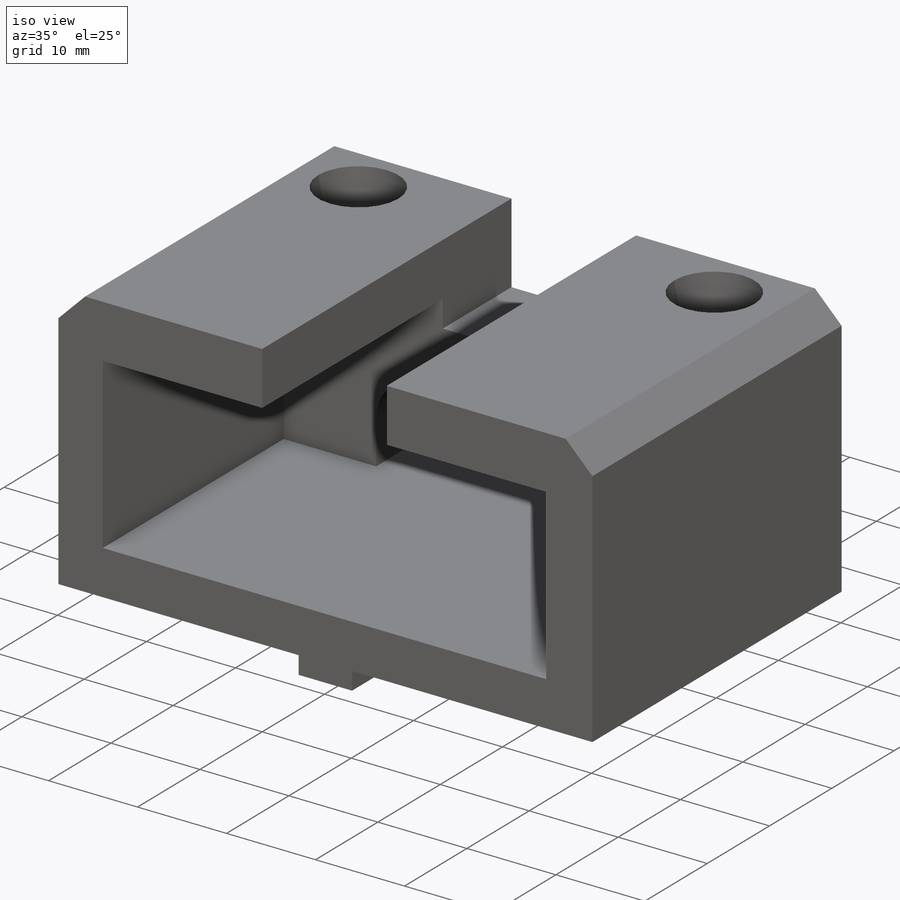
[diagram: iso view]
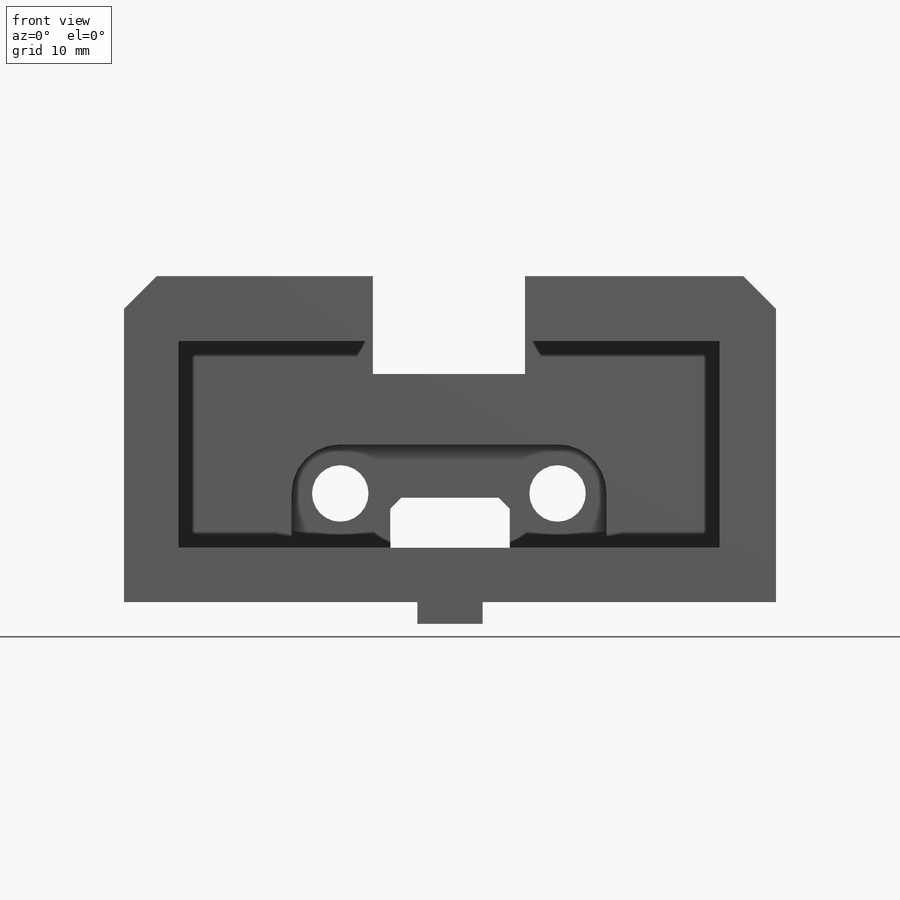
[diagram: front view]
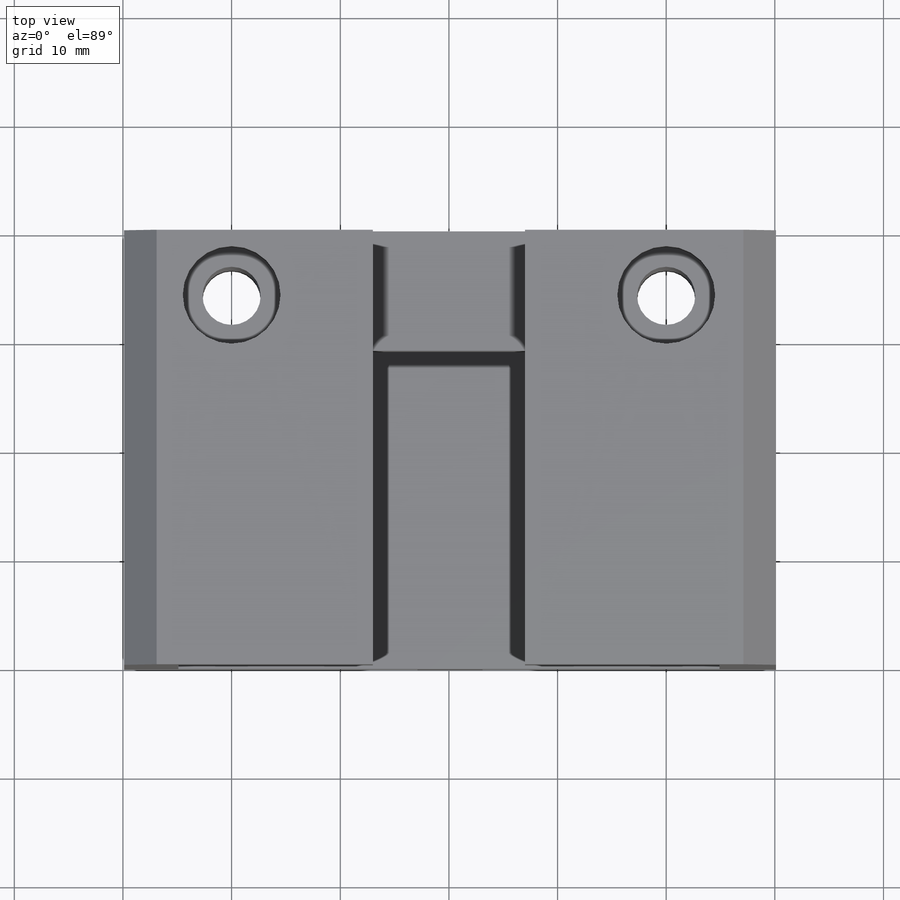
[diagram: top view]
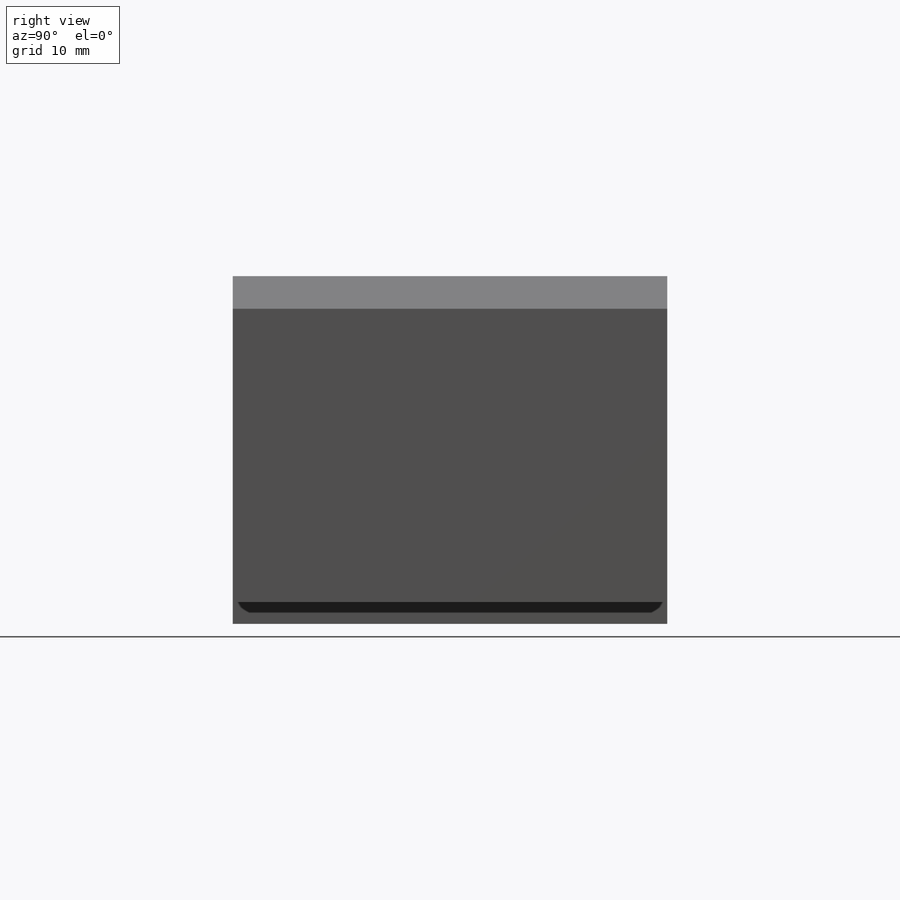
[diagram: right view]
SOLIDWORKS PART (.sldprt)
format: sldprt  version: not decoded by parser v0  size: 315,392 bytes
history: native  units: mm
features: sketch x6, cut_extrude x4, extrude x2, material x1, chamfer x1 (+16 scaffold rows collapsed)
feature tree (30):
  scaffold x16  (default folders/planes/origin — collapsed)
  material  "Material <not specified>"
  sketch  "Sketch1"  dims[c1.D2=5.0mm c1.D3=6.0mm c2.D2=14.0mm c2.D4=60.0mm c2.D5=30.0mm c2.D6=30.0mm c2.D7=23.0mm c2.D1=6.0mm c3.D7=2.0mm c3.D8=10.0mm c3.D9=10.0mm c3.D6=10.0mm c4.D8=10.0mm c4.D9=10.0mm c4.D1=5.0mm]
  extrude  "Boss-Extrude1"  Depth=40mm
  sketch  "Sketch2"  dims[D1=10.0mm]
  extrude  "Boss-Extrude2"  Depth=11mm
  sketch  "Sketch3"  dims[D1=9.0mm D2=9.0mm]
  cut_extrude  "Cut-Extrude1"  Depth=5mm
  chamfer  "Chamfer1"  Distance=3mm Angle=45deg
  sketch  "Sketch4"  dims[D1=5.35mm D4=5.35mm D2=20.0mm D3=6.0mm]
  cut_extrude  "Cut-Extrude5"  [1 undecoded]
  sketch  "Sketch5"  dims[D1=9.0mm]
  cut_extrude  "Cut-Extrude6"  Depth=5mm
  sketch  "Sketch6"
  cut_extrude  "Cut-Extrude7"  Depth=5mm
decode coverage: 11 of 13 modeling features carry decoded parameters
note: 1 parameter value undecoded
note: suppression state not decoded; provenance and decode notes live in map.json
